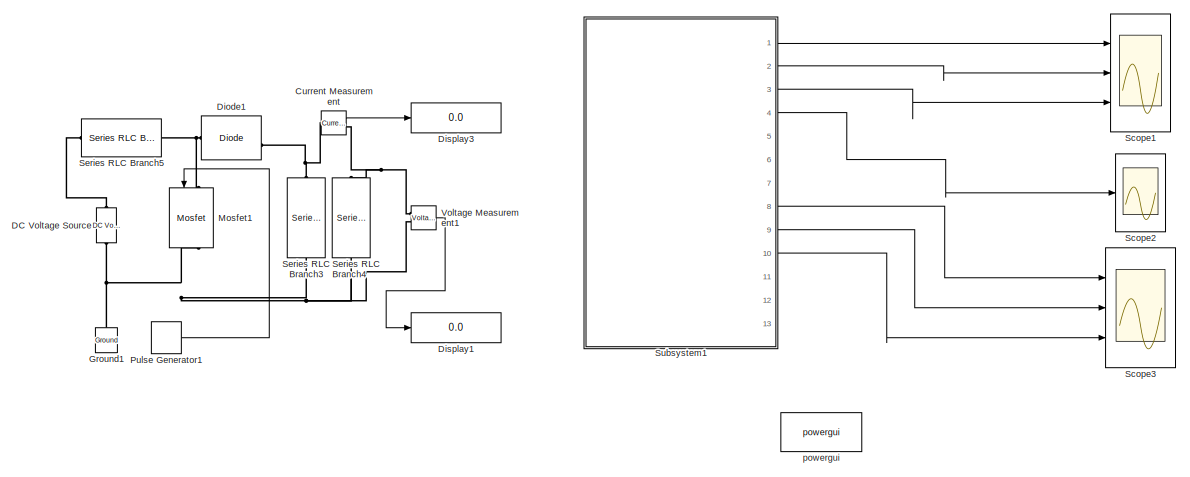
[diagram: root canvas - part 1/2, middle right region]
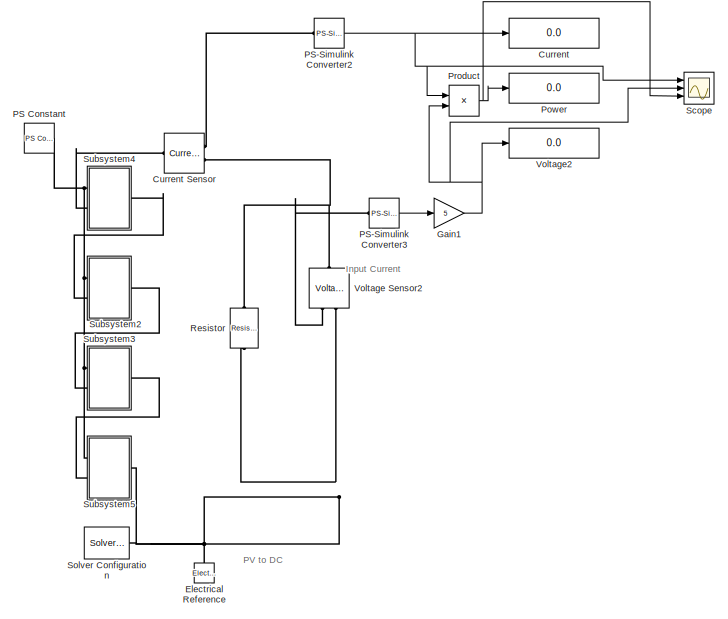
[diagram: root canvas - part 2/2, left side, full height]
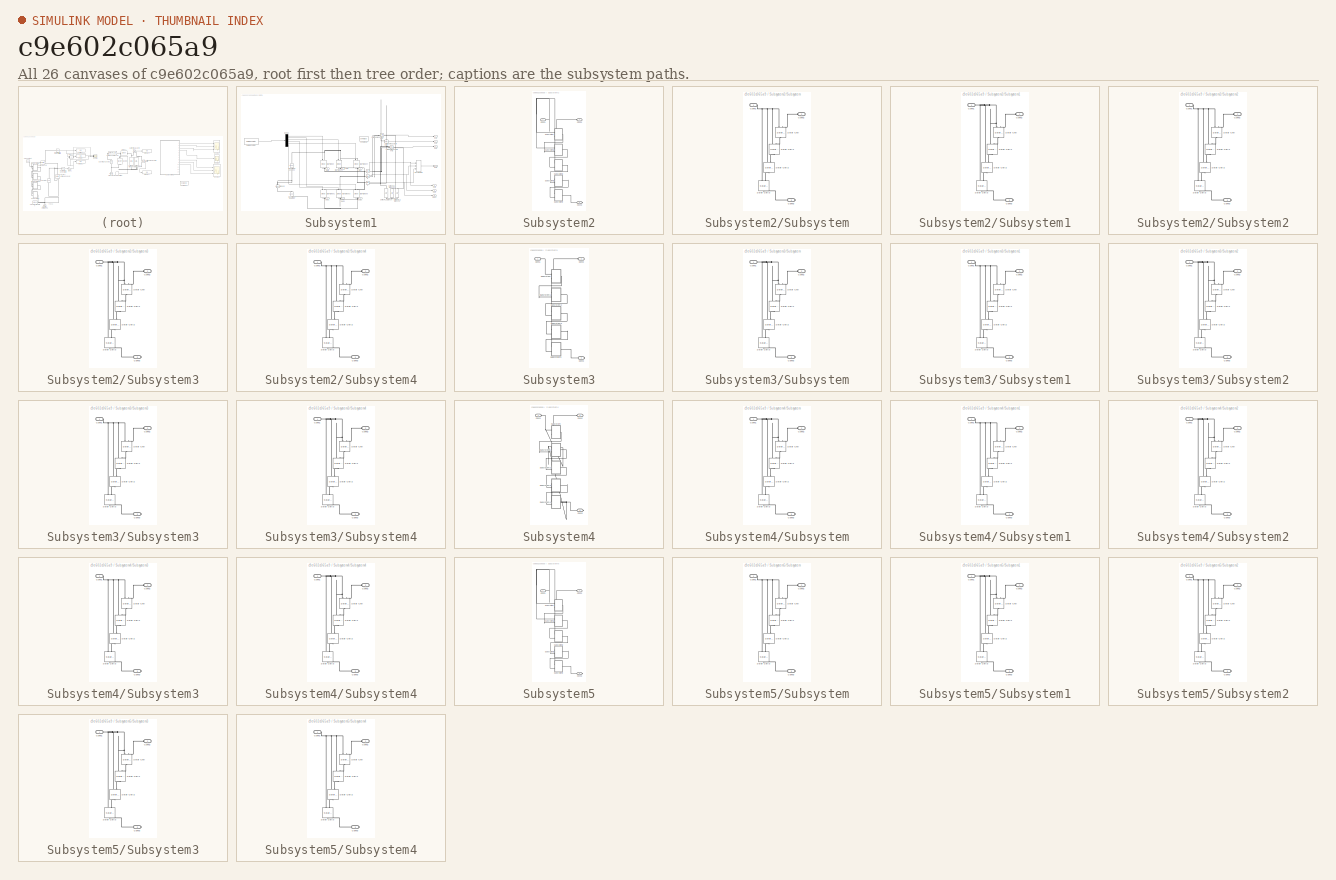
[diagram: thumbnail index - all 26 canvases of the model, root first then tree order]
MODEL slx_c9e602c065a9
KIND model
CONFIG AbsTol = auto
CONFIG EnableMultiTasking = off
CONFIG FixedStep = auto
CONFIG MaxStep = auto
CONFIG MinStep = auto
CONFIG RelTol = 1e-3
CONFIG SampleTimeConstraint = Unconstrained
CONFIG Solver = VariableStepAuto
CONFIG SolverName = VariableStepAuto
CONFIG StartTime = 0.0
CONFIG StopTime = 10.0
BLOCK [Display] Current
  Decimation = 1
  Ports = [1]
BLOCK [Reference] Current Measurement  REF=powerlib/Measurements/Current Measurement
  Ports = [0, 1, 0, 0, 0, 1, 1]
  SourceBlock = powerlib/Measurements/Current Measurement
  SourceProductBaseCode = PS
  SourceType = Current Measurement
  UserDataPersistent = on
BLOCK [Reference] Current Sensor  REF=fl_lib/Electrical/Electrical Sensors/Current Sensor
  Ports = [0, 0, 0, 0, 0, 1, 2]
  SourceBlock = fl_lib/Electrical/Electrical Sensors/Current Sensor
  SourceProductBaseCode = SS
  SourceType = Current Sensor
BLOCK [Reference] DC Voltage Source  REF=powerlib/Electrical
Sources/DC Voltage Source
  NameLocation = right
  Ports = [0, 0, 0, 0, 0, 1, 1]
  SourceBlock = powerlib/Electrical\nSources/DC Voltage Source
  SourceProductBaseCode = PS
  SourceType = DC Voltage Source
BLOCK [Reference] Diode1  REF=powerlib/Power
Electronics/Diode
  Ports = [0, 1, 0, 0, 0, 1, 1]
  SourceBlock = powerlib/Power\nElectronics/Diode
  SourceProductBaseCode = PS
  SourceType = Diode
BLOCK [Display] Display1
  Decimation = 1
  Ports = [1]
BLOCK [Display] Display3
  Decimation = 1
  Ports = [1]
BLOCK [Reference] Electrical Reference  REF=fl_lib/Electrical/Electrical Elements/Electrical Reference
  NameLocation = right
  Ports = [0, 0, 0, 0, 0, 1]
  SourceBlock = fl_lib/Electrical/Electrical Elements/Electrical Reference
  SourceProductBaseCode = SS
  SourceType = Electrical Reference
BLOCK [Gain] Gain1
  Gain = 5
BLOCK [Reference] Ground1  REF=powerlib/Elements/Ground
  NameLocation = right
  Ports = [0, 0, 0, 0, 0, 1]
  SourceBlock = powerlib/Elements/Ground
  SourceProductBaseCode = PS
  SourceType = Ground
BLOCK [Reference] Mosfet1  REF=powerlib/Power
Electronics/Mosfet
  NameLocation = left
  Ports = [1, 1, 0, 0, 0, 1, 1]
  SourceBlock = powerlib/Power\nElectronics/Mosfet
  SourceProductBaseCode = PS
  SourceType = Mosfet
BLOCK [Reference] PS Constant  REF=fl_lib/Physical Signals/Sources/PS Constant
  Ports = [0, 0, 0, 0, 0, 0, 1]
  SourceBlock = fl_lib/Physical Signals/Sources/PS Constant
  SourceProductBaseCode = SS
  SourceType = PS Constant
BLOCK [Reference] PS-Simulink Converter2  REF=nesl_utility/PS-Simulink
Converter
  Ports = [0, 1, 0, 0, 0, 1]
  SourceBlock = nesl_utility/PS-Simulink\nConverter
  SourceProductBaseCode = SS
  SourceType = PS-Simulink\nConverter
BLOCK [Reference] PS-Simulink Converter3  REF=nesl_utility/PS-Simulink
Converter
  Ports = [0, 1, 0, 0, 0, 1]
  SourceBlock = nesl_utility/PS-Simulink\nConverter
  SourceProductBaseCode = SS
  SourceType = PS-Simulink\nConverter
BLOCK [Display] Power
  Decimation = 1
  Ports = [1]
BLOCK [Product] Product
  Ports = [2, 1]
BLOCK [DiscretePulseGenerator] Pulse Generator1
  Period = 1/25000
  Ports = [0, 1]
  PulseType = Time based
  PulseWidth = 75
BLOCK [Reference] Resistor  REF=ee_lib/Passive/Resistor
  NameLocation = left
  Ports = [0, 0, 0, 0, 0, 1, 1]
  SourceBlock = ee_lib/Passive/Resistor
  SourceProductBaseCode = PS
  SourceType = Resistor
BLOCK [Scope] Scope
  Floating = off
  NumInputPorts = 3
  Ports = [3]
  ScopeSpecificationString = Simulink.scopes.TimeScopeBlockCfg('CurrentConfiguration', extmgr.ConfigurationSet(extmgr.Configuration('Core','General UI',true),extmgr.Configuration('Core','Source UI',true),extmgr.Configuration('Sources','WiredSimulink',true,'DataLoggingVariableName','ScopeData1'),extmgr.Configuration('Visuals','Time Domain',true,'SerializedDisplays',{struct('MinYLimReal','-18.68022','MaxYLimReal','241.52188','Y...<+1504ch>
BLOCK [Scope] Scope1
  Floating = off
  NumInputPorts = 3
  Ports = [3]
  ScopeSpecificationString = Simulink.scopes.TimeScopeBlockCfg('CurrentConfiguration', extmgr.ConfigurationSet(extmgr.Configuration('Core','General UI',true),extmgr.Configuration('Core','Source UI',true),extmgr.Configuration('Sources','WiredSimulink',true,'DataLogging',true,'DataLoggingSaveFormat','StructureWithTime','DataLoggingDecimation','1','DataLoggingDecimateData',true,'DataLoggingVariableName','ScopeData1'),extmgr.Conf...<+3395ch>
BLOCK [Scope] Scope2
  Floating = off
  NumInputPorts = 1
  Ports = [1]
  ScopeSpecificationString = Simulink.scopes.TimeScopeBlockCfg('CurrentConfiguration', extmgr.ConfigurationSet(extmgr.Configuration('Core','General UI',true),extmgr.Configuration('Core','Source UI',true),extmgr.Configuration('Sources','WiredSimulink',true,'DataLogging',true,'DataLoggingVariableName','ScopeData2','DataLoggingSaveFormat','StructureWithTime','DataLoggingDecimation','1','DataLoggingDecimateData',true),extmgr.Conf...<+1725ch>
BLOCK [Scope] Scope3
  Floating = off
  NumInputPorts = 3
  Ports = [3]
  ScopeSpecificationString = Simulink.scopes.TimeScopeBlockCfg('CurrentConfiguration', extmgr.ConfigurationSet(extmgr.Configuration('Core','General UI',true),extmgr.Configuration('Core','Source UI',true),extmgr.Configuration('Sources','WiredSimulink',true,'DataLogging',true,'DataLoggingVariableName','ScopeData3','DataLoggingSaveFormat','StructureWithTime','DataLoggingDecimation','1','DataLoggingDecimateData',true),extmgr.Conf...<+3022ch>
BLOCK [Reference] Series RLC Branch3  REF=powerlib/Elements/Series RLC Branch
  NameLocation = left
  Ports = [0, 0, 0, 0, 0, 1, 1]
  SourceBlock = powerlib/Elements/Series RLC Branch
  SourceProductBaseCode = PS
  SourceType = Series RLC Branch
BLOCK [Reference] Series RLC Branch4  REF=powerlib/Elements/Series RLC Branch
  NameLocation = left
  Ports = [0, 0, 0, 0, 0, 1, 1]
  SourceBlock = powerlib/Elements/Series RLC Branch
  SourceProductBaseCode = PS
  SourceType = Series RLC Branch
BLOCK [Reference] Series RLC Branch5  REF=powerlib/Elements/Series RLC Branch
  Ports = [0, 0, 0, 0, 0, 1, 1]
  SourceBlock = powerlib/Elements/Series RLC Branch
  SourceProductBaseCode = PS
  SourceType = Series RLC Branch
BLOCK [Reference] Solver Configuration  REF=nesl_utility/Solver
Configuration
  Ports = [0, 0, 0, 0, 0, 0, 1]
  SourceBlock = nesl_utility/Solver\nConfiguration
  SourceProductBaseCode = SS
  SourceType = Solver\nConfiguration
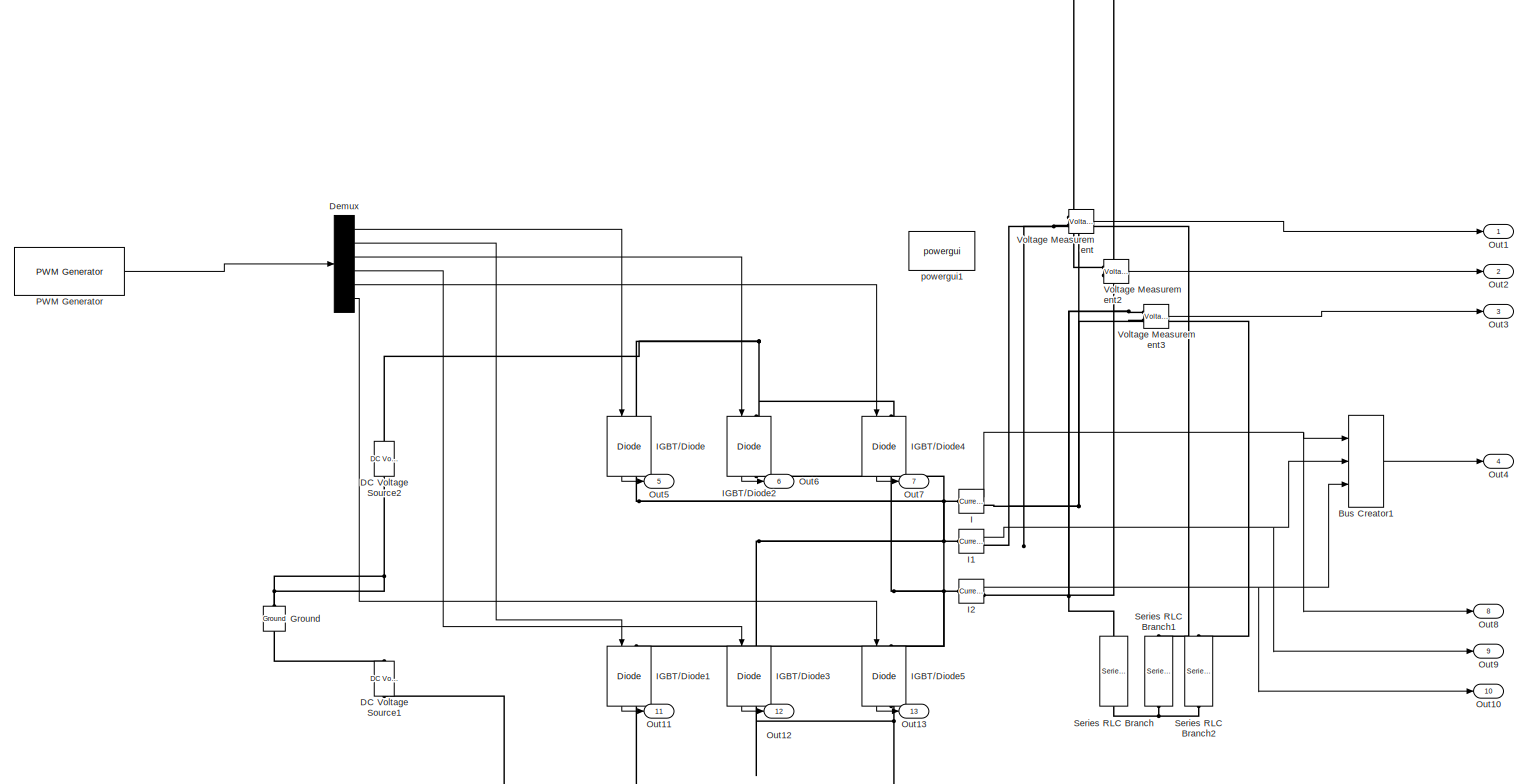
[diagram: Subsystem1 - part 1/1, most of the canvas]
BLOCK [SubSystem] Subsystem1
  Ports = [0, 13]
  RequestExecContextInheritance = off
BLOCK [BusCreator] Subsystem1/Bus Creator1
  DisplayOption = bar
  InheritFromInputs = on
  Inputs = 3
  Ports = [3, 1]
BLOCK [Reference] Subsystem1/DC Voltage Source1  REF=powerlib/Electrical
Sources/DC Voltage Source
  NameLocation = right
  Ports = [0, 0, 0, 0, 0, 1, 1]
  SourceBlock = powerlib/Electrical\nSources/DC Voltage Source
  SourceProductBaseCode = PS
  SourceType = DC Voltage Source
BLOCK [Reference] Subsystem1/DC Voltage Source2  REF=powerlib/Electrical
Sources/DC Voltage Source
  NameLocation = right
  Ports = [0, 0, 0, 0, 0, 1, 1]
  SourceBlock = powerlib/Electrical\nSources/DC Voltage Source
  SourceProductBaseCode = PS
  SourceType = DC Voltage Source
BLOCK [Demux] Subsystem1/Demux
  Outputs = 6
  Ports = [1, 6]
BLOCK [Reference] Subsystem1/Ground  REF=powerlib/Elements/Ground
  NameLocation = right
  Ports = [0, 0, 0, 0, 0, 1]
  SourceBlock = powerlib/Elements/Ground
  SourceProductBaseCode = PS
  SourceType = Ground
BLOCK [Reference] Subsystem1/I  REF=powerlib/Measurements/Current Measurement
  Ports = [0, 1, 0, 0, 0, 1, 1]
  SourceBlock = powerlib/Measurements/Current Measurement
  SourceProductBaseCode = PS
  SourceType = Current Measurement
BLOCK [Reference] Subsystem1/I1  REF=powerlib/Measurements/Current Measurement
  Ports = [0, 1, 0, 0, 0, 1, 1]
  SourceBlock = powerlib/Measurements/Current Measurement
  SourceProductBaseCode = PS
  SourceType = Current Measurement
BLOCK [Reference] Subsystem1/I2  REF=powerlib/Measurements/Current Measurement
  Ports = [0, 1, 0, 0, 0, 1, 1]
  SourceBlock = powerlib/Measurements/Current Measurement
  SourceProductBaseCode = PS
  SourceType = Current Measurement
BLOCK [Reference] Subsystem1/IGBT//Diode  REF=powerlib/Power
Electronics/IGBT//Diode
  NameLocation = left
  Ports = [1, 1, 0, 0, 0, 1, 1]
  SourceBlock = powerlib/Power\nElectronics/IGBT//Diode
  SourceProductBaseCode = PS
  SourceType = IGBT/Diode
BLOCK [Reference] Subsystem1/IGBT//Diode1  REF=powerlib/Power
Electronics/IGBT//Diode
  NameLocation = left
  Ports = [1, 1, 0, 0, 0, 1, 1]
  SourceBlock = powerlib/Power\nElectronics/IGBT//Diode
  SourceProductBaseCode = PS
  SourceType = IGBT/Diode
BLOCK [Reference] Subsystem1/IGBT//Diode2  REF=powerlib/Power
Electronics/IGBT//Diode
  NameLocation = left
  Ports = [1, 1, 0, 0, 0, 1, 1]
  SourceBlock = powerlib/Power\nElectronics/IGBT//Diode
  SourceProductBaseCode = PS
  SourceType = IGBT/Diode
BLOCK [Reference] Subsystem1/IGBT//Diode3  REF=powerlib/Power
Electronics/IGBT//Diode
  NameLocation = left
  Ports = [1, 1, 0, 0, 0, 1, 1]
  SourceBlock = powerlib/Power\nElectronics/IGBT//Diode
  SourceProductBaseCode = PS
  SourceType = IGBT/Diode
BLOCK [Reference] Subsystem1/IGBT//Diode4  REF=powerlib/Power
Electronics/IGBT//Diode
  NameLocation = left
  Ports = [1, 1, 0, 0, 0, 1, 1]
  SourceBlock = powerlib/Power\nElectronics/IGBT//Diode
  SourceProductBaseCode = PS
  SourceType = IGBT/Diode
BLOCK [Reference] Subsystem1/IGBT//Diode5  REF=powerlib/Power
Electronics/IGBT//Diode
  NameLocation = left
  Ports = [1, 1, 0, 0, 0, 1, 1]
  SourceBlock = powerlib/Power\nElectronics/IGBT//Diode
  SourceProductBaseCode = PS
  SourceType = IGBT/Diode
BLOCK [Outport] Subsystem1/Out1
  VectorParamsAs1DForOutWhenUnconnected = off
BLOCK [Outport] Subsystem1/Out10
  Port = 10
  VectorParamsAs1DForOutWhenUnconnected = off
BLOCK [Outport] Subsystem1/Out11
  Port = 11
  VectorParamsAs1DForOutWhenUnconnected = off
BLOCK [Outport] Subsystem1/Out12
  Port = 12
  VectorParamsAs1DForOutWhenUnconnected = off
BLOCK [Outport] Subsystem1/Out13
  Port = 13
  VectorParamsAs1DForOutWhenUnconnected = off
BLOCK [Outport] Subsystem1/Out2
  Port = 2
  VectorParamsAs1DForOutWhenUnconnected = off
BLOCK [Outport] Subsystem1/Out3
  Port = 3
  VectorParamsAs1DForOutWhenUnconnected = off
BLOCK [Outport] Subsystem1/Out4
  Port = 4
  VectorParamsAs1DForOutWhenUnconnected = off
BLOCK [Outport] Subsystem1/Out5
  Port = 5
  VectorParamsAs1DForOutWhenUnconnected = off
BLOCK [Outport] Subsystem1/Out6
  Port = 6
  VectorParamsAs1DForOutWhenUnconnected = off
BLOCK [Outport] Subsystem1/Out7
  Port = 7
  VectorParamsAs1DForOutWhenUnconnected = off
BLOCK [Outport] Subsystem1/Out8
  Port = 8
  VectorParamsAs1DForOutWhenUnconnected = off
BLOCK [Outport] Subsystem1/Out9
  Port = 9
  VectorParamsAs1DForOutWhenUnconnected = off
BLOCK [Reference] Subsystem1/PWM Generator  REF=powerlib_extras/Control 
Blocks/PWM Generator
  Ports = [0, 1]
  SourceBlock = powerlib_extras/Control \nBlocks/PWM Generator
  SourceProductBaseCode = PS
  SourceType = PWM Generator
BLOCK [Reference] Subsystem1/Series RLC Branch  REF=powerlib/Elements/Series RLC Branch
  NameLocation = left
  Ports = [0, 0, 0, 0, 0, 1, 1]
  SourceBlock = powerlib/Elements/Series RLC Branch
  SourceProductBaseCode = PS
  SourceType = Series RLC Branch
BLOCK [Reference] Subsystem1/Series RLC Branch1  REF=powerlib/Elements/Series RLC Branch
  NameLocation = left
  Ports = [0, 0, 0, 0, 0, 1, 1]
  SourceBlock = powerlib/Elements/Series RLC Branch
  SourceProductBaseCode = PS
  SourceType = Series RLC Branch
BLOCK [Reference] Subsystem1/Series RLC Branch2  REF=powerlib/Elements/Series RLC Branch
  NameLocation = left
  Ports = [0, 0, 0, 0, 0, 1, 1]
  SourceBlock = powerlib/Elements/Series RLC Branch
  SourceProductBaseCode = PS
  SourceType = Series RLC Branch
BLOCK [Reference] Subsystem1/Voltage Measurement  REF=powerlib/Measurements/Voltage Measurement
  Ports = [0, 1, 0, 0, 0, 2]
  SourceBlock = powerlib/Measurements/Voltage Measurement
  SourceProductBaseCode = PS
  SourceType = Voltage Measurement
BLOCK [Reference] Subsystem1/Voltage Measurement2  REF=powerlib/Measurements/Voltage Measurement
  Ports = [0, 1, 0, 0, 0, 2]
  SourceBlock = powerlib/Measurements/Voltage Measurement
  SourceProductBaseCode = PS
  SourceType = Voltage Measurement
BLOCK [Reference] Subsystem1/Voltage Measurement3  REF=powerlib/Measurements/Voltage Measurement
  Ports = [0, 1, 0, 0, 0, 2]
  SourceBlock = powerlib/Measurements/Voltage Measurement
  SourceProductBaseCode = PS
  SourceType = Voltage Measurement
BLOCK [Reference] Subsystem1/powergui1  REF=powerlib/powergui
  Ports = []
  Priority = 1
  SourceBlock = powerlib/powergui
  SourceProductBaseCode = PS
  SourceType = PSB option menu block
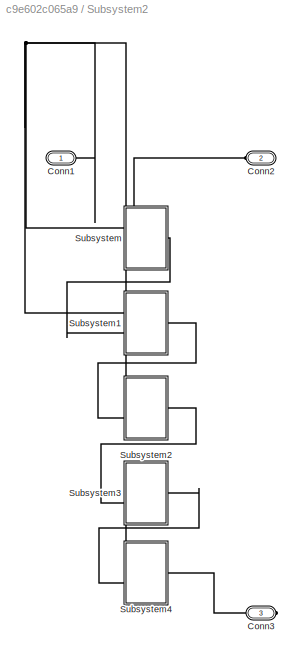
BLOCK [SubSystem] Subsystem2
  Ports = [0, 0, 0, 0, 0, 2, 1]
  RequestExecContextInheritance = off
BLOCK [PMIOPort] Subsystem2/Conn1
  Side = Left
BLOCK [PMIOPort] Subsystem2/Conn2
  Port = 2
  Side = Left
BLOCK [PMIOPort] Subsystem2/Conn3
  Port = 3
  Side = Right
BLOCK [SubSystem] Subsystem2/Subsystem
  Ports = [0, 0, 0, 0, 0, 2, 1]
  RequestExecContextInheritance = off
BLOCK [PMIOPort] Subsystem2/Subsystem/Conn1
  Side = Left
BLOCK [PMIOPort] Subsystem2/Subsystem/Conn2
  Port = 2
  Side = Left
BLOCK [PMIOPort] Subsystem2/Subsystem/Conn3
  Port = 3
  Side = Right
BLOCK [Reference] Subsystem2/Subsystem/Solar Cell  REF=ee_lib/Sources/Solar Cell
  NameLocation = right
  Ports = [0, 0, 0, 0, 0, 2, 1]
  SourceBlock = ee_lib/Sources/Solar Cell
  SourceProductBaseCode = PS
  SourceType = Solar Cell
BLOCK [Reference] Subsystem2/Subsystem/Solar Cell1  REF=ee_lib/Sources/Solar Cell
  NameLocation = right
  Ports = [0, 0, 0, 0, 0, 2, 1]
  SourceBlock = ee_lib/Sources/Solar Cell
  SourceProductBaseCode = PS
  SourceType = Solar Cell
BLOCK [Reference] Subsystem2/Subsystem/Solar Cell2  REF=ee_lib/Sources/Solar Cell
  NameLocation = right
  Ports = [0, 0, 0, 0, 0, 2, 1]
  SourceBlock = ee_lib/Sources/Solar Cell
  SourceProductBaseCode = PS
  SourceType = Solar Cell
BLOCK [Reference] Subsystem2/Subsystem/Solar Cell3  REF=ee_lib/Sources/Solar Cell
  NameLocation = right
  Ports = [0, 0, 0, 0, 0, 2, 1]
  SourceBlock = ee_lib/Sources/Solar Cell
  SourceProductBaseCode = PS
  SourceType = Solar Cell
BLOCK [SubSystem] Subsystem2/Subsystem1
  Ports = [0, 0, 0, 0, 0, 2, 1]
  RequestExecContextInheritance = off
BLOCK [PMIOPort] Subsystem2/Subsystem1/Conn1
  Side = Left
BLOCK [PMIOPort] Subsystem2/Subsystem1/Conn2
  Port = 2
  Side = Left
BLOCK [PMIOPort] Subsystem2/Subsystem1/Conn3
  Port = 3
  Side = Right
BLOCK [Reference] Subsystem2/Subsystem1/Solar Cell  REF=ee_lib/Sources/Solar Cell
  NameLocation = right
  Ports = [0, 0, 0, 0, 0, 2, 1]
  SourceBlock = ee_lib/Sources/Solar Cell
  SourceProductBaseCode = PS
  SourceType = Solar Cell
BLOCK [Reference] Subsystem2/Subsystem1/Solar Cell1  REF=ee_lib/Sources/Solar Cell
  NameLocation = right
  Ports = [0, 0, 0, 0, 0, 2, 1]
  SourceBlock = ee_lib/Sources/Solar Cell
  SourceProductBaseCode = PS
  SourceType = Solar Cell
BLOCK [Reference] Subsystem2/Subsystem1/Solar Cell2  REF=ee_lib/Sources/Solar Cell
  NameLocation = right
  Ports = [0, 0, 0, 0, 0, 2, 1]
  SourceBlock = ee_lib/Sources/Solar Cell
  SourceProductBaseCode = PS
  SourceType = Solar Cell
BLOCK [Reference] Subsystem2/Subsystem1/Solar Cell3  REF=ee_lib/Sources/Solar Cell
  NameLocation = right
  Ports = [0, 0, 0, 0, 0, 2, 1]
  SourceBlock = ee_lib/Sources/Solar Cell
  SourceProductBaseCode = PS
  SourceType = Solar Cell
BLOCK [SubSystem] Subsystem2/Subsystem2
  Ports = [0, 0, 0, 0, 0, 2, 1]
  RequestExecContextInheritance = off
BLOCK [PMIOPort] Subsystem2/Subsystem2/Conn1
  Side = Left
BLOCK [PMIOPort] Subsystem2/Subsystem2/Conn2
  Port = 2
  Side = Left
BLOCK [PMIOPort] Subsystem2/Subsystem2/Conn3
  Port = 3
  Side = Right
BLOCK [Reference] Subsystem2/Subsystem2/Solar Cell  REF=ee_lib/Sources/Solar Cell
  NameLocation = right
  Ports = [0, 0, 0, 0, 0, 2, 1]
  SourceBlock = ee_lib/Sources/Solar Cell
  SourceProductBaseCode = PS
  SourceType = Solar Cell
BLOCK [Reference] Subsystem2/Subsystem2/Solar Cell1  REF=ee_lib/Sources/Solar Cell
  NameLocation = right
  Ports = [0, 0, 0, 0, 0, 2, 1]
  SourceBlock = ee_lib/Sources/Solar Cell
  SourceProductBaseCode = PS
  SourceType = Solar Cell
BLOCK [Reference] Subsystem2/Subsystem2/Solar Cell2  REF=ee_lib/Sources/Solar Cell
  NameLocation = right
  Ports = [0, 0, 0, 0, 0, 2, 1]
  SourceBlock = ee_lib/Sources/Solar Cell
  SourceProductBaseCode = PS
  SourceType = Solar Cell
BLOCK [Reference] Subsystem2/Subsystem2/Solar Cell3  REF=ee_lib/Sources/Solar Cell
  NameLocation = right
  Ports = [0, 0, 0, 0, 0, 2, 1]
  SourceBlock = ee_lib/Sources/Solar Cell
  SourceProductBaseCode = PS
  SourceType = Solar Cell
BLOCK [SubSystem] Subsystem2/Subsystem3
  Ports = [0, 0, 0, 0, 0, 2, 1]
  RequestExecContextInheritance = off
BLOCK [PMIOPort] Subsystem2/Subsystem3/Conn1
  Side = Left
BLOCK [PMIOPort] Subsystem2/Subsystem3/Conn2
  Port = 2
  Side = Left
BLOCK [PMIOPort] Subsystem2/Subsystem3/Conn3
  Port = 3
  Side = Right
BLOCK [Reference] Subsystem2/Subsystem3/Solar Cell  REF=ee_lib/Sources/Solar Cell
  NameLocation = right
  Ports = [0, 0, 0, 0, 0, 2, 1]
  SourceBlock = ee_lib/Sources/Solar Cell
  SourceProductBaseCode = PS
  SourceType = Solar Cell
BLOCK [Reference] Subsystem2/Subsystem3/Solar Cell1  REF=ee_lib/Sources/Solar Cell
  NameLocation = right
  Ports = [0, 0, 0, 0, 0, 2, 1]
  SourceBlock = ee_lib/Sources/Solar Cell
  SourceProductBaseCode = PS
  SourceType = Solar Cell
BLOCK [Reference] Subsystem2/Subsystem3/Solar Cell2  REF=ee_lib/Sources/Solar Cell
  NameLocation = right
  Ports = [0, 0, 0, 0, 0, 2, 1]
  SourceBlock = ee_lib/Sources/Solar Cell
  SourceProductBaseCode = PS
  SourceType = Solar Cell
BLOCK [Reference] Subsystem2/Subsystem3/Solar Cell3  REF=ee_lib/Sources/Solar Cell
  NameLocation = right
  Ports = [0, 0, 0, 0, 0, 2, 1]
  SourceBlock = ee_lib/Sources/Solar Cell
  SourceProductBaseCode = PS
  SourceType = Solar Cell
BLOCK [SubSystem] Subsystem2/Subsystem4
  Ports = [0, 0, 0, 0, 0, 2, 1]
  RequestExecContextInheritance = off
BLOCK [PMIOPort] Subsystem2/Subsystem4/Conn1
  Side = Left
BLOCK [PMIOPort] Subsystem2/Subsystem4/Conn2
  Port = 2
  Side = Left
BLOCK [PMIOPort] Subsystem2/Subsystem4/Conn3
  Port = 3
  Side = Right
BLOCK [Reference] Subsystem2/Subsystem4/Solar Cell  REF=ee_lib/Sources/Solar Cell
  NameLocation = right
  Ports = [0, 0, 0, 0, 0, 2, 1]
  SourceBlock = ee_lib/Sources/Solar Cell
  SourceProductBaseCode = PS
  SourceType = Solar Cell
BLOCK [Reference] Subsystem2/Subsystem4/Solar Cell1  REF=ee_lib/Sources/Solar Cell
  NameLocation = right
  Ports = [0, 0, 0, 0, 0, 2, 1]
  SourceBlock = ee_lib/Sources/Solar Cell
  SourceProductBaseCode = PS
  SourceType = Solar Cell
BLOCK [Reference] Subsystem2/Subsystem4/Solar Cell2  REF=ee_lib/Sources/Solar Cell
  NameLocation = right
  Ports = [0, 0, 0, 0, 0, 2, 1]
  SourceBlock = ee_lib/Sources/Solar Cell
  SourceProductBaseCode = PS
  SourceType = Solar Cell
BLOCK [Reference] Subsystem2/Subsystem4/Solar Cell3  REF=ee_lib/Sources/Solar Cell
  NameLocation = right
  Ports = [0, 0, 0, 0, 0, 2, 1]
  SourceBlock = ee_lib/Sources/Solar Cell
  SourceProductBaseCode = PS
  SourceType = Solar Cell
BLOCK [SubSystem] Subsystem3
  Ports = [0, 0, 0, 0, 0, 2, 1]
  RequestExecContextInheritance = off
BLOCK [PMIOPort] Subsystem3/Conn1
  Side = Left
BLOCK [PMIOPort] Subsystem3/Conn2
  Port = 2
  Side = Left
BLOCK [PMIOPort] Subsystem3/Conn3
  Port = 3
  Side = Right
BLOCK [SubSystem] Subsystem3/Subsystem
  Ports = [0, 0, 0, 0, 0, 2, 1]
  RequestExecContextInheritance = off
BLOCK [PMIOPort] Subsystem3/Subsystem/Conn1
  Side = Left
BLOCK [PMIOPort] Subsystem3/Subsystem/Conn2
  Port = 2
  Side = Left
BLOCK [PMIOPort] Subsystem3/Subsystem/Conn3
  Port = 3
  Side = Right
BLOCK [Reference] Subsystem3/Subsystem/Solar Cell  REF=ee_lib/Sources/Solar Cell
  NameLocation = right
  Ports = [0, 0, 0, 0, 0, 2, 1]
  SourceBlock = ee_lib/Sources/Solar Cell
  SourceProductBaseCode = PS
  SourceType = Solar Cell
BLOCK [Reference] Subsystem3/Subsystem/Solar Cell1  REF=ee_lib/Sources/Solar Cell
  NameLocation = right
  Ports = [0, 0, 0, 0, 0, 2, 1]
  SourceBlock = ee_lib/Sources/Solar Cell
  SourceProductBaseCode = PS
  SourceType = Solar Cell
BLOCK [Reference] Subsystem3/Subsystem/Solar Cell2  REF=ee_lib/Sources/Solar Cell
  NameLocation = right
  Ports = [0, 0, 0, 0, 0, 2, 1]
  SourceBlock = ee_lib/Sources/Solar Cell
  SourceProductBaseCode = PS
  SourceType = Solar Cell
BLOCK [Reference] Subsystem3/Subsystem/Solar Cell3  REF=ee_lib/Sources/Solar Cell
  NameLocation = right
  Ports = [0, 0, 0, 0, 0, 2, 1]
  SourceBlock = ee_lib/Sources/Solar Cell
  SourceProductBaseCode = PS
  SourceType = Solar Cell
BLOCK [SubSystem] Subsystem3/Subsystem1
  Ports = [0, 0, 0, 0, 0, 2, 1]
  RequestExecContextInheritance = off
BLOCK [PMIOPort] Subsystem3/Subsystem1/Conn1
  Side = Left
BLOCK [PMIOPort] Subsystem3/Subsystem1/Conn2
  Port = 2
  Side = Left
BLOCK [PMIOPort] Subsystem3/Subsystem1/Conn3
  Port = 3
  Side = Right
BLOCK [Reference] Subsystem3/Subsystem1/Solar Cell  REF=ee_lib/Sources/Solar Cell
  NameLocation = right
  Ports = [0, 0, 0, 0, 0, 2, 1]
  SourceBlock = ee_lib/Sources/Solar Cell
  SourceProductBaseCode = PS
  SourceType = Solar Cell
BLOCK [Reference] Subsystem3/Subsystem1/Solar Cell1  REF=ee_lib/Sources/Solar Cell
  NameLocation = right
  Ports = [0, 0, 0, 0, 0, 2, 1]
  SourceBlock = ee_lib/Sources/Solar Cell
  SourceProductBaseCode = PS
  SourceType = Solar Cell
BLOCK [Reference] Subsystem3/Subsystem1/Solar Cell2  REF=ee_lib/Sources/Solar Cell
  NameLocation = right
  Ports = [0, 0, 0, 0, 0, 2, 1]
  SourceBlock = ee_lib/Sources/Solar Cell
  SourceProductBaseCode = PS
  SourceType = Solar Cell
BLOCK [Reference] Subsystem3/Subsystem1/Solar Cell3  REF=ee_lib/Sources/Solar Cell
  NameLocation = right
  Ports = [0, 0, 0, 0, 0, 2, 1]
  SourceBlock = ee_lib/Sources/Solar Cell
  SourceProductBaseCode = PS
  SourceType = Solar Cell
BLOCK [SubSystem] Subsystem3/Subsystem2
  Ports = [0, 0, 0, 0, 0, 2, 1]
  RequestExecContextInheritance = off
BLOCK [PMIOPort] Subsystem3/Subsystem2/Conn1
  Side = Left
BLOCK [PMIOPort] Subsystem3/Subsystem2/Conn2
  Port = 2
  Side = Left
BLOCK [PMIOPort] Subsystem3/Subsystem2/Conn3
  Port = 3
  Side = Right
BLOCK [Reference] Subsystem3/Subsystem2/Solar Cell  REF=ee_lib/Sources/Solar Cell
  NameLocation = right
  Ports = [0, 0, 0, 0, 0, 2, 1]
  SourceBlock = ee_lib/Sources/Solar Cell
  SourceProductBaseCode = PS
  SourceType = Solar Cell
BLOCK [Reference] Subsystem3/Subsystem2/Solar Cell1  REF=ee_lib/Sources/Solar Cell
  NameLocation = right
  Ports = [0, 0, 0, 0, 0, 2, 1]
  SourceBlock = ee_lib/Sources/Solar Cell
  SourceProductBaseCode = PS
  SourceType = Solar Cell
BLOCK [Reference] Subsystem3/Subsystem2/Solar Cell2  REF=ee_lib/Sources/Solar Cell
  NameLocation = right
  Ports = [0, 0, 0, 0, 0, 2, 1]
  SourceBlock = ee_lib/Sources/Solar Cell
  SourceProductBaseCode = PS
  SourceType = Solar Cell
BLOCK [Reference] Subsystem3/Subsystem2/Solar Cell3  REF=ee_lib/Sources/Solar Cell
  NameLocation = right
  Ports = [0, 0, 0, 0, 0, 2, 1]
  SourceBlock = ee_lib/Sources/Solar Cell
  SourceProductBaseCode = PS
  SourceType = Solar Cell
BLOCK [SubSystem] Subsystem3/Subsystem3
  Ports = [0, 0, 0, 0, 0, 2, 1]
  RequestExecContextInheritance = off
BLOCK [PMIOPort] Subsystem3/Subsystem3/Conn1
  Side = Left
BLOCK [PMIOPort] Subsystem3/Subsystem3/Conn2
  Port = 2
  Side = Left
BLOCK [PMIOPort] Subsystem3/Subsystem3/Conn3
  Port = 3
  Side = Right
BLOCK [Reference] Subsystem3/Subsystem3/Solar Cell  REF=ee_lib/Sources/Solar Cell
  NameLocation = right
  Ports = [0, 0, 0, 0, 0, 2, 1]
  SourceBlock = ee_lib/Sources/Solar Cell
  SourceProductBaseCode = PS
  SourceType = Solar Cell
BLOCK [Reference] Subsystem3/Subsystem3/Solar Cell1  REF=ee_lib/Sources/Solar Cell
  NameLocation = right
  Ports = [0, 0, 0, 0, 0, 2, 1]
  SourceBlock = ee_lib/Sources/Solar Cell
  SourceProductBaseCode = PS
  SourceType = Solar Cell
BLOCK [Reference] Subsystem3/Subsystem3/Solar Cell2  REF=ee_lib/Sources/Solar Cell
  NameLocation = right
  Ports = [0, 0, 0, 0, 0, 2, 1]
  SourceBlock = ee_lib/Sources/Solar Cell
  SourceProductBaseCode = PS
  SourceType = Solar Cell
BLOCK [Reference] Subsystem3/Subsystem3/Solar Cell3  REF=ee_lib/Sources/Solar Cell
  NameLocation = right
  Ports = [0, 0, 0, 0, 0, 2, 1]
  SourceBlock = ee_lib/Sources/Solar Cell
  SourceProductBaseCode = PS
  SourceType = Solar Cell
BLOCK [SubSystem] Subsystem3/Subsystem4
  Ports = [0, 0, 0, 0, 0, 2, 1]
  RequestExecContextInheritance = off
BLOCK [PMIOPort] Subsystem3/Subsystem4/Conn1
  Side = Left
BLOCK [PMIOPort] Subsystem3/Subsystem4/Conn2
  Port = 2
  Side = Left
BLOCK [PMIOPort] Subsystem3/Subsystem4/Conn3
  Port = 3
  Side = Right
BLOCK [Reference] Subsystem3/Subsystem4/Solar Cell  REF=ee_lib/Sources/Solar Cell
  NameLocation = right
  Ports = [0, 0, 0, 0, 0, 2, 1]
  SourceBlock = ee_lib/Sources/Solar Cell
  SourceProductBaseCode = PS
  SourceType = Solar Cell
BLOCK [Reference] Subsystem3/Subsystem4/Solar Cell1  REF=ee_lib/Sources/Solar Cell
  NameLocation = right
  Ports = [0, 0, 0, 0, 0, 2, 1]
  SourceBlock = ee_lib/Sources/Solar Cell
  SourceProductBaseCode = PS
  SourceType = Solar Cell
BLOCK [Reference] Subsystem3/Subsystem4/Solar Cell2  REF=ee_lib/Sources/Solar Cell
  NameLocation = right
  Ports = [0, 0, 0, 0, 0, 2, 1]
  SourceBlock = ee_lib/Sources/Solar Cell
  SourceProductBaseCode = PS
  SourceType = Solar Cell
BLOCK [Reference] Subsystem3/Subsystem4/Solar Cell3  REF=ee_lib/Sources/Solar Cell
  NameLocation = right
  Ports = [0, 0, 0, 0, 0, 2, 1]
  SourceBlock = ee_lib/Sources/Solar Cell
  SourceProductBaseCode = PS
  SourceType = Solar Cell
BLOCK [SubSystem] Subsystem4
  Ports = [0, 0, 0, 0, 0, 2, 1]
  RequestExecContextInheritance = off
BLOCK [PMIOPort] Subsystem4/Conn1
  Side = Left
BLOCK [PMIOPort] Subsystem4/Conn2
  Port = 2
  Side = Left
BLOCK [PMIOPort] Subsystem4/Conn3
  Port = 3
  Side = Right
BLOCK [SubSystem] Subsystem4/Subsystem
  Ports = [0, 0, 0, 0, 0, 2, 1]
  RequestExecContextInheritance = off
BLOCK [PMIOPort] Subsystem4/Subsystem/Conn1
  Side = Left
BLOCK [PMIOPort] Subsystem4/Subsystem/Conn2
  Port = 2
  Side = Left
BLOCK [PMIOPort] Subsystem4/Subsystem/Conn3
  Port = 3
  Side = Right
BLOCK [Reference] Subsystem4/Subsystem/Solar Cell  REF=ee_lib/Sources/Solar Cell
  NameLocation = right
  Ports = [0, 0, 0, 0, 0, 2, 1]
  SourceBlock = ee_lib/Sources/Solar Cell
  SourceProductBaseCode = PS
  SourceType = Solar Cell
BLOCK [Reference] Subsystem4/Subsystem/Solar Cell1  REF=ee_lib/Sources/Solar Cell
  NameLocation = right
  Ports = [0, 0, 0, 0, 0, 2, 1]
  SourceBlock = ee_lib/Sources/Solar Cell
  SourceProductBaseCode = PS
  SourceType = Solar Cell
BLOCK [Reference] Subsystem4/Subsystem/Solar Cell2  REF=ee_lib/Sources/Solar Cell
  NameLocation = right
  Ports = [0, 0, 0, 0, 0, 2, 1]
  SourceBlock = ee_lib/Sources/Solar Cell
  SourceProductBaseCode = PS
  SourceType = Solar Cell
BLOCK [Reference] Subsystem4/Subsystem/Solar Cell3  REF=ee_lib/Sources/Solar Cell
  NameLocation = right
  Ports = [0, 0, 0, 0, 0, 2, 1]
  SourceBlock = ee_lib/Sources/Solar Cell
  SourceProductBaseCode = PS
  SourceType = Solar Cell
BLOCK [SubSystem] Subsystem4/Subsystem1
  Ports = [0, 0, 0, 0, 0, 2, 1]
  RequestExecContextInheritance = off
BLOCK [PMIOPort] Subsystem4/Subsystem1/Conn1
  Side = Left
BLOCK [PMIOPort] Subsystem4/Subsystem1/Conn2
  Port = 2
  Side = Left
BLOCK [PMIOPort] Subsystem4/Subsystem1/Conn3
  Port = 3
  Side = Right
BLOCK [Reference] Subsystem4/Subsystem1/Solar Cell  REF=ee_lib/Sources/Solar Cell
  NameLocation = right
  Ports = [0, 0, 0, 0, 0, 2, 1]
  SourceBlock = ee_lib/Sources/Solar Cell
  SourceProductBaseCode = PS
  SourceType = Solar Cell
BLOCK [Reference] Subsystem4/Subsystem1/Solar Cell1  REF=ee_lib/Sources/Solar Cell
  NameLocation = right
  Ports = [0, 0, 0, 0, 0, 2, 1]
  SourceBlock = ee_lib/Sources/Solar Cell
  SourceProductBaseCode = PS
  SourceType = Solar Cell
BLOCK [Reference] Subsystem4/Subsystem1/Solar Cell2  REF=ee_lib/Sources/Solar Cell
  NameLocation = right
  Ports = [0, 0, 0, 0, 0, 2, 1]
  SourceBlock = ee_lib/Sources/Solar Cell
  SourceProductBaseCode = PS
  SourceType = Solar Cell
BLOCK [Reference] Subsystem4/Subsystem1/Solar Cell3  REF=ee_lib/Sources/Solar Cell
  NameLocation = right
  Ports = [0, 0, 0, 0, 0, 2, 1]
  SourceBlock = ee_lib/Sources/Solar Cell
  SourceProductBaseCode = PS
  SourceType = Solar Cell
BLOCK [SubSystem] Subsystem4/Subsystem2
  Ports = [0, 0, 0, 0, 0, 2, 1]
  RequestExecContextInheritance = off
BLOCK [PMIOPort] Subsystem4/Subsystem2/Conn1
  Side = Left
BLOCK [PMIOPort] Subsystem4/Subsystem2/Conn2
  Port = 2
  Side = Left
BLOCK [PMIOPort] Subsystem4/Subsystem2/Conn3
  Port = 3
  Side = Right
BLOCK [Reference] Subsystem4/Subsystem2/Solar Cell  REF=ee_lib/Sources/Solar Cell
  NameLocation = right
  Ports = [0, 0, 0, 0, 0, 2, 1]
  SourceBlock = ee_lib/Sources/Solar Cell
  SourceProductBaseCode = PS
  SourceType = Solar Cell
BLOCK [Reference] Subsystem4/Subsystem2/Solar Cell1  REF=ee_lib/Sources/Solar Cell
  NameLocation = right
  Ports = [0, 0, 0, 0, 0, 2, 1]
  SourceBlock = ee_lib/Sources/Solar Cell
  SourceProductBaseCode = PS
  SourceType = Solar Cell
BLOCK [Reference] Subsystem4/Subsystem2/Solar Cell2  REF=ee_lib/Sources/Solar Cell
  NameLocation = right
  Ports = [0, 0, 0, 0, 0, 2, 1]
  SourceBlock = ee_lib/Sources/Solar Cell
  SourceProductBaseCode = PS
  SourceType = Solar Cell
BLOCK [Reference] Subsystem4/Subsystem2/Solar Cell3  REF=ee_lib/Sources/Solar Cell
  NameLocation = right
  Ports = [0, 0, 0, 0, 0, 2, 1]
  SourceBlock = ee_lib/Sources/Solar Cell
  SourceProductBaseCode = PS
  SourceType = Solar Cell
BLOCK [SubSystem] Subsystem4/Subsystem3
  Ports = [0, 0, 0, 0, 0, 2, 1]
  RequestExecContextInheritance = off
BLOCK [PMIOPort] Subsystem4/Subsystem3/Conn1
  Side = Left
BLOCK [PMIOPort] Subsystem4/Subsystem3/Conn2
  Port = 2
  Side = Left
BLOCK [PMIOPort] Subsystem4/Subsystem3/Conn3
  Port = 3
  Side = Right
BLOCK [Reference] Subsystem4/Subsystem3/Solar Cell  REF=ee_lib/Sources/Solar Cell
  NameLocation = right
  Ports = [0, 0, 0, 0, 0, 2, 1]
  SourceBlock = ee_lib/Sources/Solar Cell
  SourceProductBaseCode = PS
  SourceType = Solar Cell
BLOCK [Reference] Subsystem4/Subsystem3/Solar Cell1  REF=ee_lib/Sources/Solar Cell
  NameLocation = right
  Ports = [0, 0, 0, 0, 0, 2, 1]
  SourceBlock = ee_lib/Sources/Solar Cell
  SourceProductBaseCode = PS
  SourceType = Solar Cell
BLOCK [Reference] Subsystem4/Subsystem3/Solar Cell2  REF=ee_lib/Sources/Solar Cell
  NameLocation = right
  Ports = [0, 0, 0, 0, 0, 2, 1]
  SourceBlock = ee_lib/Sources/Solar Cell
  SourceProductBaseCode = PS
  SourceType = Solar Cell
BLOCK [Reference] Subsystem4/Subsystem3/Solar Cell3  REF=ee_lib/Sources/Solar Cell
  NameLocation = right
  Ports = [0, 0, 0, 0, 0, 2, 1]
  SourceBlock = ee_lib/Sources/Solar Cell
  SourceProductBaseCode = PS
  SourceType = Solar Cell
BLOCK [SubSystem] Subsystem4/Subsystem4
  Ports = [0, 0, 0, 0, 0, 2, 1]
  RequestExecContextInheritance = off
BLOCK [PMIOPort] Subsystem4/Subsystem4/Conn1
  Side = Left
BLOCK [PMIOPort] Subsystem4/Subsystem4/Conn2
  Port = 2
  Side = Left
BLOCK [PMIOPort] Subsystem4/Subsystem4/Conn3
  Port = 3
  Side = Right
BLOCK [Reference] Subsystem4/Subsystem4/Solar Cell  REF=ee_lib/Sources/Solar Cell
  NameLocation = right
  Ports = [0, 0, 0, 0, 0, 2, 1]
  SourceBlock = ee_lib/Sources/Solar Cell
  SourceProductBaseCode = PS
  SourceType = Solar Cell
BLOCK [Reference] Subsystem4/Subsystem4/Solar Cell1  REF=ee_lib/Sources/Solar Cell
  NameLocation = right
  Ports = [0, 0, 0, 0, 0, 2, 1]
  SourceBlock = ee_lib/Sources/Solar Cell
  SourceProductBaseCode = PS
  SourceType = Solar Cell
BLOCK [Reference] Subsystem4/Subsystem4/Solar Cell2  REF=ee_lib/Sources/Solar Cell
  NameLocation = right
  Ports = [0, 0, 0, 0, 0, 2, 1]
  SourceBlock = ee_lib/Sources/Solar Cell
  SourceProductBaseCode = PS
  SourceType = Solar Cell
BLOCK [Reference] Subsystem4/Subsystem4/Solar Cell3  REF=ee_lib/Sources/Solar Cell
  NameLocation = right
  Ports = [0, 0, 0, 0, 0, 2, 1]
  SourceBlock = ee_lib/Sources/Solar Cell
  SourceProductBaseCode = PS
  SourceType = Solar Cell
BLOCK [SubSystem] Subsystem5
  Ports = [0, 0, 0, 0, 0, 2, 1]
  RequestExecContextInheritance = off
BLOCK [PMIOPort] Subsystem5/Conn1
  Side = Left
BLOCK [PMIOPort] Subsystem5/Conn2
  Port = 2
  Side = Left
BLOCK [PMIOPort] Subsystem5/Conn3
  Port = 3
  Side = Right
BLOCK [SubSystem] Subsystem5/Subsystem
  Ports = [0, 0, 0, 0, 0, 2, 1]
  RequestExecContextInheritance = off
BLOCK [PMIOPort] Subsystem5/Subsystem/Conn1
  Side = Left
BLOCK [PMIOPort] Subsystem5/Subsystem/Conn2
  Port = 2
  Side = Left
BLOCK [PMIOPort] Subsystem5/Subsystem/Conn3
  Port = 3
  Side = Right
BLOCK [Reference] Subsystem5/Subsystem/Solar Cell  REF=ee_lib/Sources/Solar Cell
  NameLocation = right
  Ports = [0, 0, 0, 0, 0, 2, 1]
  SourceBlock = ee_lib/Sources/Solar Cell
  SourceProductBaseCode = PS
  SourceType = Solar Cell
BLOCK [Reference] Subsystem5/Subsystem/Solar Cell1  REF=ee_lib/Sources/Solar Cell
  NameLocation = right
  Ports = [0, 0, 0, 0, 0, 2, 1]
  SourceBlock = ee_lib/Sources/Solar Cell
  SourceProductBaseCode = PS
  SourceType = Solar Cell
BLOCK [Reference] Subsystem5/Subsystem/Solar Cell2  REF=ee_lib/Sources/Solar Cell
  NameLocation = right
  Ports = [0, 0, 0, 0, 0, 2, 1]
  SourceBlock = ee_lib/Sources/Solar Cell
  SourceProductBaseCode = PS
  SourceType = Solar Cell
BLOCK [Reference] Subsystem5/Subsystem/Solar Cell3  REF=ee_lib/Sources/Solar Cell
  NameLocation = right
  Ports = [0, 0, 0, 0, 0, 2, 1]
  SourceBlock = ee_lib/Sources/Solar Cell
  SourceProductBaseCode = PS
  SourceType = Solar Cell
BLOCK [SubSystem] Subsystem5/Subsystem1
  Ports = [0, 0, 0, 0, 0, 2, 1]
  RequestExecContextInheritance = off
BLOCK [PMIOPort] Subsystem5/Subsystem1/Conn1
  Side = Left
BLOCK [PMIOPort] Subsystem5/Subsystem1/Conn2
  Port = 2
  Side = Left
BLOCK [PMIOPort] Subsystem5/Subsystem1/Conn3
  Port = 3
  Side = Right
BLOCK [Reference] Subsystem5/Subsystem1/Solar Cell  REF=ee_lib/Sources/Solar Cell
  NameLocation = right
  Ports = [0, 0, 0, 0, 0, 2, 1]
  SourceBlock = ee_lib/Sources/Solar Cell
  SourceProductBaseCode = PS
  SourceType = Solar Cell
BLOCK [Reference] Subsystem5/Subsystem1/Solar Cell1  REF=ee_lib/Sources/Solar Cell
  NameLocation = right
  Ports = [0, 0, 0, 0, 0, 2, 1]
  SourceBlock = ee_lib/Sources/Solar Cell
  SourceProductBaseCode = PS
  SourceType = Solar Cell
BLOCK [Reference] Subsystem5/Subsystem1/Solar Cell2  REF=ee_lib/Sources/Solar Cell
  NameLocation = right
  Ports = [0, 0, 0, 0, 0, 2, 1]
  SourceBlock = ee_lib/Sources/Solar Cell
  SourceProductBaseCode = PS
  SourceType = Solar Cell
BLOCK [Reference] Subsystem5/Subsystem1/Solar Cell3  REF=ee_lib/Sources/Solar Cell
  NameLocation = right
  Ports = [0, 0, 0, 0, 0, 2, 1]
  SourceBlock = ee_lib/Sources/Solar Cell
  SourceProductBaseCode = PS
  SourceType = Solar Cell
BLOCK [SubSystem] Subsystem5/Subsystem2
  Ports = [0, 0, 0, 0, 0, 2, 1]
  RequestExecContextInheritance = off
BLOCK [PMIOPort] Subsystem5/Subsystem2/Conn1
  Side = Left
BLOCK [PMIOPort] Subsystem5/Subsystem2/Conn2
  Port = 2
  Side = Left
BLOCK [PMIOPort] Subsystem5/Subsystem2/Conn3
  Port = 3
  Side = Right
BLOCK [Reference] Subsystem5/Subsystem2/Solar Cell  REF=ee_lib/Sources/Solar Cell
  NameLocation = right
  Ports = [0, 0, 0, 0, 0, 2, 1]
  SourceBlock = ee_lib/Sources/Solar Cell
  SourceProductBaseCode = PS
  SourceType = Solar Cell
BLOCK [Reference] Subsystem5/Subsystem2/Solar Cell1  REF=ee_lib/Sources/Solar Cell
  NameLocation = right
  Ports = [0, 0, 0, 0, 0, 2, 1]
  SourceBlock = ee_lib/Sources/Solar Cell
  SourceProductBaseCode = PS
  SourceType = Solar Cell
BLOCK [Reference] Subsystem5/Subsystem2/Solar Cell2  REF=ee_lib/Sources/Solar Cell
  NameLocation = right
  Ports = [0, 0, 0, 0, 0, 2, 1]
  SourceBlock = ee_lib/Sources/Solar Cell
  SourceProductBaseCode = PS
  SourceType = Solar Cell
BLOCK [Reference] Subsystem5/Subsystem2/Solar Cell3  REF=ee_lib/Sources/Solar Cell
  NameLocation = right
  Ports = [0, 0, 0, 0, 0, 2, 1]
  SourceBlock = ee_lib/Sources/Solar Cell
  SourceProductBaseCode = PS
  SourceType = Solar Cell
BLOCK [SubSystem] Subsystem5/Subsystem3
  Ports = [0, 0, 0, 0, 0, 2, 1]
  RequestExecContextInheritance = off
BLOCK [PMIOPort] Subsystem5/Subsystem3/Conn1
  Side = Left
BLOCK [PMIOPort] Subsystem5/Subsystem3/Conn2
  Port = 2
  Side = Left
BLOCK [PMIOPort] Subsystem5/Subsystem3/Conn3
  Port = 3
  Side = Right
BLOCK [Reference] Subsystem5/Subsystem3/Solar Cell  REF=ee_lib/Sources/Solar Cell
  NameLocation = right
  Ports = [0, 0, 0, 0, 0, 2, 1]
  SourceBlock = ee_lib/Sources/Solar Cell
  SourceProductBaseCode = PS
  SourceType = Solar Cell
BLOCK [Reference] Subsystem5/Subsystem3/Solar Cell1  REF=ee_lib/Sources/Solar Cell
  NameLocation = right
  Ports = [0, 0, 0, 0, 0, 2, 1]
  SourceBlock = ee_lib/Sources/Solar Cell
  SourceProductBaseCode = PS
  SourceType = Solar Cell
BLOCK [Reference] Subsystem5/Subsystem3/Solar Cell2  REF=ee_lib/Sources/Solar Cell
  NameLocation = right
  Ports = [0, 0, 0, 0, 0, 2, 1]
  SourceBlock = ee_lib/Sources/Solar Cell
  SourceProductBaseCode = PS
  SourceType = Solar Cell
BLOCK [Reference] Subsystem5/Subsystem3/Solar Cell3  REF=ee_lib/Sources/Solar Cell
  NameLocation = right
  Ports = [0, 0, 0, 0, 0, 2, 1]
  SourceBlock = ee_lib/Sources/Solar Cell
  SourceProductBaseCode = PS
  SourceType = Solar Cell
BLOCK [SubSystem] Subsystem5/Subsystem4
  Ports = [0, 0, 0, 0, 0, 2, 1]
  RequestExecContextInheritance = off
BLOCK [PMIOPort] Subsystem5/Subsystem4/Conn1
  Side = Left
BLOCK [PMIOPort] Subsystem5/Subsystem4/Conn2
  Port = 2
  Side = Left
BLOCK [PMIOPort] Subsystem5/Subsystem4/Conn3
  Port = 3
  Side = Right
BLOCK [Reference] Subsystem5/Subsystem4/Solar Cell  REF=ee_lib/Sources/Solar Cell
  NameLocation = right
  Ports = [0, 0, 0, 0, 0, 2, 1]
  SourceBlock = ee_lib/Sources/Solar Cell
  SourceProductBaseCode = PS
  SourceType = Solar Cell
BLOCK [Reference] Subsystem5/Subsystem4/Solar Cell1  REF=ee_lib/Sources/Solar Cell
  NameLocation = right
  Ports = [0, 0, 0, 0, 0, 2, 1]
  SourceBlock = ee_lib/Sources/Solar Cell
  SourceProductBaseCode = PS
  SourceType = Solar Cell
BLOCK [Reference] Subsystem5/Subsystem4/Solar Cell2  REF=ee_lib/Sources/Solar Cell
  NameLocation = right
  Ports = [0, 0, 0, 0, 0, 2, 1]
  SourceBlock = ee_lib/Sources/Solar Cell
  SourceProductBaseCode = PS
  SourceType = Solar Cell
BLOCK [Reference] Subsystem5/Subsystem4/Solar Cell3  REF=ee_lib/Sources/Solar Cell
  NameLocation = right
  Ports = [0, 0, 0, 0, 0, 2, 1]
  SourceBlock = ee_lib/Sources/Solar Cell
  SourceProductBaseCode = PS
  SourceType = Solar Cell
BLOCK [Reference] Voltage Measurement1  REF=powerlib/Measurements/Voltage Measurement
  Ports = [0, 1, 0, 0, 0, 2]
  SourceBlock = powerlib/Measurements/Voltage Measurement
  SourceProductBaseCode = PS
  SourceType = Voltage Measurement
  UserDataPersistent = on
BLOCK [Reference] Voltage Sensor2  REF=fl_lib/Electrical/Electrical Sensors/Voltage Sensor
  NameLocation = right
  Ports = [0, 0, 0, 0, 0, 1, 2]
  SourceBlock = fl_lib/Electrical/Electrical Sensors/Voltage Sensor
  SourceProductBaseCode = SS
  SourceType = Voltage Sensor
BLOCK [Display] Voltage2
  Decimation = 1
  Ports = [1]
BLOCK [Reference] powergui  REF=powerlib/powergui
  Ports = []
  Priority = 1
  SourceBlock = powerlib/powergui
  SourceProductBaseCode = PS
  SourceType = PSB option menu block
ANNOTATION (root): PV to DC
ANNOTATION (root): Input Current
LINE Current Measurement:1 -> Display3:1
NET Gain1:1 -> Product:2, Scope:2, Voltage2:1
NET PS-Simulink Converter2:1 -> Current:1, Product:1, Scope:1
LINE PS-Simulink Converter3:1 -> Gain1:1
NET Product:1 -> Power:1, Scope:3
LINE Pulse Generator1:1 -> Mosfet1:1
LINE Subsystem1/Bus Creator1:1 -> Subsystem1/Out4:1
LINE Subsystem1/Demux:1 -> Subsystem1/IGBT//Diode:1
LINE Subsystem1/Demux:2 -> Subsystem1/IGBT//Diode1:1
LINE Subsystem1/Demux:3 -> Subsystem1/IGBT//Diode2:1
LINE Subsystem1/Demux:4 -> Subsystem1/IGBT//Diode3:1
LINE Subsystem1/Demux:5 -> Subsystem1/IGBT//Diode4:1
LINE Subsystem1/Demux:6 -> Subsystem1/IGBT//Diode5:1
NET Subsystem1/I1:1 -> Subsystem1/Bus Creator1:2, Subsystem1/Out9:1
NET Subsystem1/I2:1 -> Subsystem1/Bus Creator1:3, Subsystem1/Out10:1
NET Subsystem1/I:1 -> Subsystem1/Bus Creator1:1, Subsystem1/Out8:1
LINE Subsystem1/IGBT//Diode1:1 -> Subsystem1/Out11:1
LINE Subsystem1/IGBT//Diode2:1 -> Subsystem1/Out6:1
LINE Subsystem1/IGBT//Diode3:1 -> Subsystem1/Out12:1
LINE Subsystem1/IGBT//Diode4:1 -> Subsystem1/Out7:1
LINE Subsystem1/IGBT//Diode5:1 -> Subsystem1/Out13:1
LINE Subsystem1/IGBT//Diode:1 -> Subsystem1/Out5:1
LINE Subsystem1/PWM Generator:1 -> Subsystem1/Demux:1
LINE Subsystem1/Voltage Measurement2:1 -> Subsystem1/Out2:1
LINE Subsystem1/Voltage Measurement3:1 -> Subsystem1/Out3:1
LINE Subsystem1/Voltage Measurement:1 -> Subsystem1/Out1:1
LINE Subsystem1:1 -> Scope1:1
LINE Subsystem1:10 -> Scope3:3
LINE Subsystem1:2 -> Scope1:2
LINE Subsystem1:3 -> Scope1:3
LINE Subsystem1:4 -> Scope2:1
LINE Subsystem1:8 -> Scope3:1
LINE Subsystem1:9 -> Scope3:2
LINE Voltage Measurement1:1 -> Display1:1
PNET net1: Current Measurement:LConn1 -- Diode1:RConn1 -- Series RLC Branch3:LConn1
PNET net2: Current Measurement:RConn1 -- Series RLC Branch4:LConn1 -- Voltage Measurement1:LConn1
PLINE Current Sensor:LConn1 -- Subsystem4:LConn2
PLINE Current Sensor:RConn1 -- PS-Simulink Converter2:LConn1
PNET net3: Current Sensor:RConn2 -- Resistor:LConn1 -- Voltage Sensor2:LConn1
PNET net4: DC Voltage Source:LConn1 -- Ground1:LConn1 -- Mosfet1:RConn1 -- Series RLC Branch3:RConn1 -- Series RLC Branch4:RConn1 -- Voltage Measurement1:LConn2
PLINE DC Voltage Source:RConn1 -- Series RLC Branch5:LConn1
PNET net5: Diode1:LConn1 -- Mosfet1:LConn1 -- Series RLC Branch5:RConn1
PNET net6: Electrical Reference:LConn1 -- Resistor:RConn1 -- Solver Configuration:RConn1 -- Subsystem5:RConn1 -- Voltage Sensor2:RConn2
PNET net7: PS Constant:RConn1 -- Subsystem2:LConn1 -- Subsystem3:LConn1 -- Subsystem4:LConn1 -- Subsystem5:LConn1
PLINE PS-Simulink Converter3:LConn1 -- Voltage Sensor2:RConn1
PNET net8: Subsystem1/DC Voltage Source1:LConn1 -- Subsystem1/IGBT//Diode1:RConn1 -- Subsystem1/IGBT//Diode3:RConn1 -- Subsystem1/IGBT//Diode5:RConn1
PNET net9: Subsystem1/DC Voltage Source1:RConn1 -- Subsystem1/DC Voltage Source2:LConn1 -- Subsystem1/Ground:LConn1
PNET net10: Subsystem1/DC Voltage Source2:RConn1 -- Subsystem1/IGBT//Diode2:LConn1 -- Subsystem1/IGBT//Diode4:LConn1 -- Subsystem1/IGBT//Diode:LConn1
PNET net11: Subsystem1/I1:LConn1 -- Subsystem1/IGBT//Diode2:RConn1 -- Subsystem1/IGBT//Diode3:LConn1
PNET net12: Subsystem1/I1:RConn1 -- Subsystem1/Series RLC Branch1:LConn1 -- Subsystem1/Voltage Measurement2:LConn1 -- Subsystem1/Voltage Measurement:LConn2
PNET net13: Subsystem1/I2:LConn1 -- Subsystem1/IGBT//Diode4:RConn1 -- Subsystem1/IGBT//Diode5:LConn1
PNET net14: Subsystem1/I2:RConn1 -- Subsystem1/Series RLC Branch:LConn1 -- Subsystem1/Voltage Measurement2:LConn2 -- Subsystem1/Voltage Measurement3:LConn1
PNET net15: Subsystem1/I:LConn1 -- Subsystem1/IGBT//Diode1:LConn1 -- Subsystem1/IGBT//Diode:RConn1
PNET net16: Subsystem1/I:RConn1 -- Subsystem1/Series RLC Branch2:LConn1 -- Subsystem1/Voltage Measurement3:LConn2 -- Subsystem1/Voltage Measurement:LConn1
PNET net17: Subsystem1/Series RLC Branch1:RConn1 -- Subsystem1/Series RLC Branch2:RConn1 -- Subsystem1/Series RLC Branch:RConn1
PNET net18: Subsystem2/Conn1:RConn1 -- Subsystem2/Subsystem1:LConn1 -- Subsystem2/Subsystem2:LConn1 -- Subsystem2/Subsystem3:LConn1 -- Subsystem2/Subsystem4:LConn1 -- Subsystem2/Subsystem:LConn1
PLINE Subsystem2/Conn2:RConn1 -- Subsystem2/Subsystem:LConn2
PLINE Subsystem2/Conn3:RConn1 -- Subsystem2/Subsystem4:RConn1
PNET net19: Subsystem2/Subsystem/Conn1:RConn1 -- Subsystem2/Subsystem/Solar Cell1:LConn1 -- Subsystem2/Subsystem/Solar Cell2:LConn1 -- Subsystem2/Subsystem/Solar Cell3:LConn1 -- Subsystem2/Subsystem/Solar Cell:LConn1
PLINE Subsystem2/Subsystem/Conn2:RConn1 -- Subsystem2/Subsystem/Solar Cell:LConn2
PLINE Subsystem2/Subsystem/Conn3:RConn1 -- Subsystem2/Subsystem/Solar Cell3:RConn1
PLINE Subsystem2/Subsystem/Solar Cell1:LConn2 -- Subsystem2/Subsystem/Solar Cell:RConn1
PLINE Subsystem2/Subsystem/Solar Cell1:RConn1 -- Subsystem2/Subsystem/Solar Cell2:LConn2
PLINE Subsystem2/Subsystem/Solar Cell2:RConn1 -- Subsystem2/Subsystem/Solar Cell3:LConn2
PNET net20: Subsystem2/Subsystem1/Conn1:RConn1 -- Subsystem2/Subsystem1/Solar Cell1:LConn1 -- Subsystem2/Subsystem1/Solar Cell2:LConn1 -- Subsystem2/Subsystem1/Solar Cell3:LConn1 -- Subsystem2/Subsystem1/Solar Cell:LConn1
PLINE Subsystem2/Subsystem1/Conn2:RConn1 -- Subsystem2/Subsystem1/Solar Cell:LConn2
PLINE Subsystem2/Subsystem1/Conn3:RConn1 -- Subsystem2/Subsystem1/Solar Cell3:RConn1
PLINE Subsystem2/Subsystem1/Solar Cell1:LConn2 -- Subsystem2/Subsystem1/Solar Cell:RConn1
PLINE Subsystem2/Subsystem1/Solar Cell1:RConn1 -- Subsystem2/Subsystem1/Solar Cell2:LConn2
PLINE Subsystem2/Subsystem1/Solar Cell2:RConn1 -- Subsystem2/Subsystem1/Solar Cell3:LConn2
PLINE Subsystem2/Subsystem1:LConn2 -- Subsystem2/Subsystem:RConn1
PLINE Subsystem2/Subsystem1:RConn1 -- Subsystem2/Subsystem2:LConn2
PNET net21: Subsystem2/Subsystem2/Conn1:RConn1 -- Subsystem2/Subsystem2/Solar Cell1:LConn1 -- Subsystem2/Subsystem2/Solar Cell2:LConn1 -- Subsystem2/Subsystem2/Solar Cell3:LConn1 -- Subsystem2/Subsystem2/Solar Cell:LConn1
PLINE Subsystem2/Subsystem2/Conn2:RConn1 -- Subsystem2/Subsystem2/Solar Cell:LConn2
PLINE Subsystem2/Subsystem2/Conn3:RConn1 -- Subsystem2/Subsystem2/Solar Cell3:RConn1
PLINE Subsystem2/Subsystem2/Solar Cell1:LConn2 -- Subsystem2/Subsystem2/Solar Cell:RConn1
PLINE Subsystem2/Subsystem2/Solar Cell1:RConn1 -- Subsystem2/Subsystem2/Solar Cell2:LConn2
PLINE Subsystem2/Subsystem2/Solar Cell2:RConn1 -- Subsystem2/Subsystem2/Solar Cell3:LConn2
PLINE Subsystem2/Subsystem2:RConn1 -- Subsystem2/Subsystem3:LConn2
PNET net22: Subsystem2/Subsystem3/Conn1:RConn1 -- Subsystem2/Subsystem3/Solar Cell1:LConn1 -- Subsystem2/Subsystem3/Solar Cell2:LConn1 -- Subsystem2/Subsystem3/Solar Cell3:LConn1 -- Subsystem2/Subsystem3/Solar Cell:LConn1
PLINE Subsystem2/Subsystem3/Conn2:RConn1 -- Subsystem2/Subsystem3/Solar Cell:LConn2
PLINE Subsystem2/Subsystem3/Conn3:RConn1 -- Subsystem2/Subsystem3/Solar Cell3:RConn1
PLINE Subsystem2/Subsystem3/Solar Cell1:LConn2 -- Subsystem2/Subsystem3/Solar Cell:RConn1
PLINE Subsystem2/Subsystem3/Solar Cell1:RConn1 -- Subsystem2/Subsystem3/Solar Cell2:LConn2
PLINE Subsystem2/Subsystem3/Solar Cell2:RConn1 -- Subsystem2/Subsystem3/Solar Cell3:LConn2
PLINE Subsystem2/Subsystem3:RConn1 -- Subsystem2/Subsystem4:LConn2
PNET net23: Subsystem2/Subsystem4/Conn1:RConn1 -- Subsystem2/Subsystem4/Solar Cell1:LConn1 -- Subsystem2/Subsystem4/Solar Cell2:LConn1 -- Subsystem2/Subsystem4/Solar Cell3:LConn1 -- Subsystem2/Subsystem4/Solar Cell:LConn1
PLINE Subsystem2/Subsystem4/Conn2:RConn1 -- Subsystem2/Subsystem4/Solar Cell:LConn2
PLINE Subsystem2/Subsystem4/Conn3:RConn1 -- Subsystem2/Subsystem4/Solar Cell3:RConn1
PLINE Subsystem2/Subsystem4/Solar Cell1:LConn2 -- Subsystem2/Subsystem4/Solar Cell:RConn1
PLINE Subsystem2/Subsystem4/Solar Cell1:RConn1 -- Subsystem2/Subsystem4/Solar Cell2:LConn2
PLINE Subsystem2/Subsystem4/Solar Cell2:RConn1 -- Subsystem2/Subsystem4/Solar Cell3:LConn2
PLINE Subsystem2:LConn2 -- Subsystem4:RConn1
PLINE Subsystem2:RConn1 -- Subsystem3:LConn2
PNET net24: Subsystem3/Conn1:RConn1 -- Subsystem3/Subsystem1:LConn1 -- Subsystem3/Subsystem2:LConn1 -- Subsystem3/Subsystem3:LConn1 -- Subsystem3/Subsystem4:LConn1 -- Subsystem3/Subsystem:LConn1
PLINE Subsystem3/Conn2:RConn1 -- Subsystem3/Subsystem:LConn2
PLINE Subsystem3/Conn3:RConn1 -- Subsystem3/Subsystem4:RConn1
PNET net25: Subsystem3/Subsystem/Conn1:RConn1 -- Subsystem3/Subsystem/Solar Cell1:LConn1 -- Subsystem3/Subsystem/Solar Cell2:LConn1 -- Subsystem3/Subsystem/Solar Cell3:LConn1 -- Subsystem3/Subsystem/Solar Cell:LConn1
PLINE Subsystem3/Subsystem/Conn2:RConn1 -- Subsystem3/Subsystem/Solar Cell:LConn2
PLINE Subsystem3/Subsystem/Conn3:RConn1 -- Subsystem3/Subsystem/Solar Cell3:RConn1
PLINE Subsystem3/Subsystem/Solar Cell1:LConn2 -- Subsystem3/Subsystem/Solar Cell:RConn1
PLINE Subsystem3/Subsystem/Solar Cell1:RConn1 -- Subsystem3/Subsystem/Solar Cell2:LConn2
PLINE Subsystem3/Subsystem/Solar Cell2:RConn1 -- Subsystem3/Subsystem/Solar Cell3:LConn2
PNET net26: Subsystem3/Subsystem1/Conn1:RConn1 -- Subsystem3/Subsystem1/Solar Cell1:LConn1 -- Subsystem3/Subsystem1/Solar Cell2:LConn1 -- Subsystem3/Subsystem1/Solar Cell3:LConn1 -- Subsystem3/Subsystem1/Solar Cell:LConn1
PLINE Subsystem3/Subsystem1/Conn2:RConn1 -- Subsystem3/Subsystem1/Solar Cell:LConn2
PLINE Subsystem3/Subsystem1/Conn3:RConn1 -- Subsystem3/Subsystem1/Solar Cell3:RConn1
PLINE Subsystem3/Subsystem1/Solar Cell1:LConn2 -- Subsystem3/Subsystem1/Solar Cell:RConn1
PLINE Subsystem3/Subsystem1/Solar Cell1:RConn1 -- Subsystem3/Subsystem1/Solar Cell2:LConn2
PLINE Subsystem3/Subsystem1/Solar Cell2:RConn1 -- Subsystem3/Subsystem1/Solar Cell3:LConn2
PLINE Subsystem3/Subsystem1:LConn2 -- Subsystem3/Subsystem:RConn1
PLINE Subsystem3/Subsystem1:RConn1 -- Subsystem3/Subsystem2:LConn2
PNET net27: Subsystem3/Subsystem2/Conn1:RConn1 -- Subsystem3/Subsystem2/Solar Cell1:LConn1 -- Subsystem3/Subsystem2/Solar Cell2:LConn1 -- Subsystem3/Subsystem2/Solar Cell3:LConn1 -- Subsystem3/Subsystem2/Solar Cell:LConn1
PLINE Subsystem3/Subsystem2/Conn2:RConn1 -- Subsystem3/Subsystem2/Solar Cell:LConn2
PLINE Subsystem3/Subsystem2/Conn3:RConn1 -- Subsystem3/Subsystem2/Solar Cell3:RConn1
PLINE Subsystem3/Subsystem2/Solar Cell1:LConn2 -- Subsystem3/Subsystem2/Solar Cell:RConn1
PLINE Subsystem3/Subsystem2/Solar Cell1:RConn1 -- Subsystem3/Subsystem2/Solar Cell2:LConn2
PLINE Subsystem3/Subsystem2/Solar Cell2:RConn1 -- Subsystem3/Subsystem2/Solar Cell3:LConn2
PLINE Subsystem3/Subsystem2:RConn1 -- Subsystem3/Subsystem3:LConn2
PNET net28: Subsystem3/Subsystem3/Conn1:RConn1 -- Subsystem3/Subsystem3/Solar Cell1:LConn1 -- Subsystem3/Subsystem3/Solar Cell2:LConn1 -- Subsystem3/Subsystem3/Solar Cell3:LConn1 -- Subsystem3/Subsystem3/Solar Cell:LConn1
PLINE Subsystem3/Subsystem3/Conn2:RConn1 -- Subsystem3/Subsystem3/Solar Cell:LConn2
PLINE Subsystem3/Subsystem3/Conn3:RConn1 -- Subsystem3/Subsystem3/Solar Cell3:RConn1
PLINE Subsystem3/Subsystem3/Solar Cell1:LConn2 -- Subsystem3/Subsystem3/Solar Cell:RConn1
PLINE Subsystem3/Subsystem3/Solar Cell1:RConn1 -- Subsystem3/Subsystem3/Solar Cell2:LConn2
PLINE Subsystem3/Subsystem3/Solar Cell2:RConn1 -- Subsystem3/Subsystem3/Solar Cell3:LConn2
PLINE Subsystem3/Subsystem3:RConn1 -- Subsystem3/Subsystem4:LConn2
PNET net29: Subsystem3/Subsystem4/Conn1:RConn1 -- Subsystem3/Subsystem4/Solar Cell1:LConn1 -- Subsystem3/Subsystem4/Solar Cell2:LConn1 -- Subsystem3/Subsystem4/Solar Cell3:LConn1 -- Subsystem3/Subsystem4/Solar Cell:LConn1
PLINE Subsystem3/Subsystem4/Conn2:RConn1 -- Subsystem3/Subsystem4/Solar Cell:LConn2
PLINE Subsystem3/Subsystem4/Conn3:RConn1 -- Subsystem3/Subsystem4/Solar Cell3:RConn1
PLINE Subsystem3/Subsystem4/Solar Cell1:LConn2 -- Subsystem3/Subsystem4/Solar Cell:RConn1
PLINE Subsystem3/Subsystem4/Solar Cell1:RConn1 -- Subsystem3/Subsystem4/Solar Cell2:LConn2
PLINE Subsystem3/Subsystem4/Solar Cell2:RConn1 -- Subsystem3/Subsystem4/Solar Cell3:LConn2
PLINE Subsystem3:RConn1 -- Subsystem5:LConn2
PNET net30: Subsystem4/Conn1:RConn1 -- Subsystem4/Subsystem1:LConn1 -- Subsystem4/Subsystem2:LConn1 -- Subsystem4/Subsystem3:LConn1 -- Subsystem4/Subsystem4:LConn1 -- Subsystem4/Subsystem:LConn1
PLINE Subsystem4/Conn2:RConn1 -- Subsystem4/Subsystem:LConn2
PLINE Subsystem4/Conn3:RConn1 -- Subsystem4/Subsystem4:RConn1
PNET net31: Subsystem4/Subsystem/Conn1:RConn1 -- Subsystem4/Subsystem/Solar Cell1:LConn1 -- Subsystem4/Subsystem/Solar Cell2:LConn1 -- Subsystem4/Subsystem/Solar Cell3:LConn1 -- Subsystem4/Subsystem/Solar Cell:LConn1
PLINE Subsystem4/Subsystem/Conn2:RConn1 -- Subsystem4/Subsystem/Solar Cell:LConn2
PLINE Subsystem4/Subsystem/Conn3:RConn1 -- Subsystem4/Subsystem/Solar Cell3:RConn1
PLINE Subsystem4/Subsystem/Solar Cell1:LConn2 -- Subsystem4/Subsystem/Solar Cell:RConn1
PLINE Subsystem4/Subsystem/Solar Cell1:RConn1 -- Subsystem4/Subsystem/Solar Cell2:LConn2
PLINE Subsystem4/Subsystem/Solar Cell2:RConn1 -- Subsystem4/Subsystem/Solar Cell3:LConn2
PNET net32: Subsystem4/Subsystem1/Conn1:RConn1 -- Subsystem4/Subsystem1/Solar Cell1:LConn1 -- Subsystem4/Subsystem1/Solar Cell2:LConn1 -- Subsystem4/Subsystem1/Solar Cell3:LConn1 -- Subsystem4/Subsystem1/Solar Cell:LConn1
PLINE Subsystem4/Subsystem1/Conn2:RConn1 -- Subsystem4/Subsystem1/Solar Cell:LConn2
PLINE Subsystem4/Subsystem1/Conn3:RConn1 -- Subsystem4/Subsystem1/Solar Cell3:RConn1
PLINE Subsystem4/Subsystem1/Solar Cell1:LConn2 -- Subsystem4/Subsystem1/Solar Cell:RConn1
PLINE Subsystem4/Subsystem1/Solar Cell1:RConn1 -- Subsystem4/Subsystem1/Solar Cell2:LConn2
PLINE Subsystem4/Subsystem1/Solar Cell2:RConn1 -- Subsystem4/Subsystem1/Solar Cell3:LConn2
PLINE Subsystem4/Subsystem1:LConn2 -- Subsystem4/Subsystem:RConn1
PLINE Subsystem4/Subsystem1:RConn1 -- Subsystem4/Subsystem2:LConn2
PNET net33: Subsystem4/Subsystem2/Conn1:RConn1 -- Subsystem4/Subsystem2/Solar Cell1:LConn1 -- Subsystem4/Subsystem2/Solar Cell2:LConn1 -- Subsystem4/Subsystem2/Solar Cell3:LConn1 -- Subsystem4/Subsystem2/Solar Cell:LConn1
PLINE Subsystem4/Subsystem2/Conn2:RConn1 -- Subsystem4/Subsystem2/Solar Cell:LConn2
PLINE Subsystem4/Subsystem2/Conn3:RConn1 -- Subsystem4/Subsystem2/Solar Cell3:RConn1
PLINE Subsystem4/Subsystem2/Solar Cell1:LConn2 -- Subsystem4/Subsystem2/Solar Cell:RConn1
PLINE Subsystem4/Subsystem2/Solar Cell1:RConn1 -- Subsystem4/Subsystem2/Solar Cell2:LConn2
PLINE Subsystem4/Subsystem2/Solar Cell2:RConn1 -- Subsystem4/Subsystem2/Solar Cell3:LConn2
PLINE Subsystem4/Subsystem2:RConn1 -- Subsystem4/Subsystem3:LConn2
PNET net34: Subsystem4/Subsystem3/Conn1:RConn1 -- Subsystem4/Subsystem3/Solar Cell1:LConn1 -- Subsystem4/Subsystem3/Solar Cell2:LConn1 -- Subsystem4/Subsystem3/Solar Cell3:LConn1 -- Subsystem4/Subsystem3/Solar Cell:LConn1
PLINE Subsystem4/Subsystem3/Conn2:RConn1 -- Subsystem4/Subsystem3/Solar Cell:LConn2
PLINE Subsystem4/Subsystem3/Conn3:RConn1 -- Subsystem4/Subsystem3/Solar Cell3:RConn1
PLINE Subsystem4/Subsystem3/Solar Cell1:LConn2 -- Subsystem4/Subsystem3/Solar Cell:RConn1
PLINE Subsystem4/Subsystem3/Solar Cell1:RConn1 -- Subsystem4/Subsystem3/Solar Cell2:LConn2
PLINE Subsystem4/Subsystem3/Solar Cell2:RConn1 -- Subsystem4/Subsystem3/Solar Cell3:LConn2
PLINE Subsystem4/Subsystem3:RConn1 -- Subsystem4/Subsystem4:LConn2
PNET net35: Subsystem4/Subsystem4/Conn1:RConn1 -- Subsystem4/Subsystem4/Solar Cell1:LConn1 -- Subsystem4/Subsystem4/Solar Cell2:LConn1 -- Subsystem4/Subsystem4/Solar Cell3:LConn1 -- Subsystem4/Subsystem4/Solar Cell:LConn1
PLINE Subsystem4/Subsystem4/Conn2:RConn1 -- Subsystem4/Subsystem4/Solar Cell:LConn2
PLINE Subsystem4/Subsystem4/Conn3:RConn1 -- Subsystem4/Subsystem4/Solar Cell3:RConn1
PLINE Subsystem4/Subsystem4/Solar Cell1:LConn2 -- Subsystem4/Subsystem4/Solar Cell:RConn1
PLINE Subsystem4/Subsystem4/Solar Cell1:RConn1 -- Subsystem4/Subsystem4/Solar Cell2:LConn2
PLINE Subsystem4/Subsystem4/Solar Cell2:RConn1 -- Subsystem4/Subsystem4/Solar Cell3:LConn2
PNET net36: Subsystem5/Conn1:RConn1 -- Subsystem5/Subsystem1:LConn1 -- Subsystem5/Subsystem2:LConn1 -- Subsystem5/Subsystem3:LConn1 -- Subsystem5/Subsystem4:LConn1 -- Subsystem5/Subsystem:LConn1
PLINE Subsystem5/Conn2:RConn1 -- Subsystem5/Subsystem:LConn2
PLINE Subsystem5/Conn3:RConn1 -- Subsystem5/Subsystem4:RConn1
PNET net37: Subsystem5/Subsystem/Conn1:RConn1 -- Subsystem5/Subsystem/Solar Cell1:LConn1 -- Subsystem5/Subsystem/Solar Cell2:LConn1 -- Subsystem5/Subsystem/Solar Cell3:LConn1 -- Subsystem5/Subsystem/Solar Cell:LConn1
PLINE Subsystem5/Subsystem/Conn2:RConn1 -- Subsystem5/Subsystem/Solar Cell:LConn2
PLINE Subsystem5/Subsystem/Conn3:RConn1 -- Subsystem5/Subsystem/Solar Cell3:RConn1
PLINE Subsystem5/Subsystem/Solar Cell1:LConn2 -- Subsystem5/Subsystem/Solar Cell:RConn1
PLINE Subsystem5/Subsystem/Solar Cell1:RConn1 -- Subsystem5/Subsystem/Solar Cell2:LConn2
PLINE Subsystem5/Subsystem/Solar Cell2:RConn1 -- Subsystem5/Subsystem/Solar Cell3:LConn2
PNET net38: Subsystem5/Subsystem1/Conn1:RConn1 -- Subsystem5/Subsystem1/Solar Cell1:LConn1 -- Subsystem5/Subsystem1/Solar Cell2:LConn1 -- Subsystem5/Subsystem1/Solar Cell3:LConn1 -- Subsystem5/Subsystem1/Solar Cell:LConn1
PLINE Subsystem5/Subsystem1/Conn2:RConn1 -- Subsystem5/Subsystem1/Solar Cell:LConn2
PLINE Subsystem5/Subsystem1/Conn3:RConn1 -- Subsystem5/Subsystem1/Solar Cell3:RConn1
PLINE Subsystem5/Subsystem1/Solar Cell1:LConn2 -- Subsystem5/Subsystem1/Solar Cell:RConn1
PLINE Subsystem5/Subsystem1/Solar Cell1:RConn1 -- Subsystem5/Subsystem1/Solar Cell2:LConn2
PLINE Subsystem5/Subsystem1/Solar Cell2:RConn1 -- Subsystem5/Subsystem1/Solar Cell3:LConn2
PLINE Subsystem5/Subsystem1:LConn2 -- Subsystem5/Subsystem:RConn1
PLINE Subsystem5/Subsystem1:RConn1 -- Subsystem5/Subsystem2:LConn2
PNET net39: Subsystem5/Subsystem2/Conn1:RConn1 -- Subsystem5/Subsystem2/Solar Cell1:LConn1 -- Subsystem5/Subsystem2/Solar Cell2:LConn1 -- Subsystem5/Subsystem2/Solar Cell3:LConn1 -- Subsystem5/Subsystem2/Solar Cell:LConn1
PLINE Subsystem5/Subsystem2/Conn2:RConn1 -- Subsystem5/Subsystem2/Solar Cell:LConn2
PLINE Subsystem5/Subsystem2/Conn3:RConn1 -- Subsystem5/Subsystem2/Solar Cell3:RConn1
PLINE Subsystem5/Subsystem2/Solar Cell1:LConn2 -- Subsystem5/Subsystem2/Solar Cell:RConn1
PLINE Subsystem5/Subsystem2/Solar Cell1:RConn1 -- Subsystem5/Subsystem2/Solar Cell2:LConn2
PLINE Subsystem5/Subsystem2/Solar Cell2:RConn1 -- Subsystem5/Subsystem2/Solar Cell3:LConn2
PLINE Subsystem5/Subsystem2:RConn1 -- Subsystem5/Subsystem3:LConn2
PNET net40: Subsystem5/Subsystem3/Conn1:RConn1 -- Subsystem5/Subsystem3/Solar Cell1:LConn1 -- Subsystem5/Subsystem3/Solar Cell2:LConn1 -- Subsystem5/Subsystem3/Solar Cell3:LConn1 -- Subsystem5/Subsystem3/Solar Cell:LConn1
PLINE Subsystem5/Subsystem3/Conn2:RConn1 -- Subsystem5/Subsystem3/Solar Cell:LConn2
PLINE Subsystem5/Subsystem3/Conn3:RConn1 -- Subsystem5/Subsystem3/Solar Cell3:RConn1
PLINE Subsystem5/Subsystem3/Solar Cell1:LConn2 -- Subsystem5/Subsystem3/Solar Cell:RConn1
PLINE Subsystem5/Subsystem3/Solar Cell1:RConn1 -- Subsystem5/Subsystem3/Solar Cell2:LConn2
PLINE Subsystem5/Subsystem3/Solar Cell2:RConn1 -- Subsystem5/Subsystem3/Solar Cell3:LConn2
PLINE Subsystem5/Subsystem3:RConn1 -- Subsystem5/Subsystem4:LConn2
PNET net41: Subsystem5/Subsystem4/Conn1:RConn1 -- Subsystem5/Subsystem4/Solar Cell1:LConn1 -- Subsystem5/Subsystem4/Solar Cell2:LConn1 -- Subsystem5/Subsystem4/Solar Cell3:LConn1 -- Subsystem5/Subsystem4/Solar Cell:LConn1
PLINE Subsystem5/Subsystem4/Conn2:RConn1 -- Subsystem5/Subsystem4/Solar Cell:LConn2
PLINE Subsystem5/Subsystem4/Conn3:RConn1 -- Subsystem5/Subsystem4/Solar Cell3:RConn1
PLINE Subsystem5/Subsystem4/Solar Cell1:LConn2 -- Subsystem5/Subsystem4/Solar Cell:RConn1
PLINE Subsystem5/Subsystem4/Solar Cell1:RConn1 -- Subsystem5/Subsystem4/Solar Cell2:LConn2
PLINE Subsystem5/Subsystem4/Solar Cell2:RConn1 -- Subsystem5/Subsystem4/Solar Cell3:LConn2
note: NET lines group one-source signal fan-out (src -> all destinations, sorted); 1:1 wires keep LINE; PNET lines group multi-terminal physical nets as a canonical sorted terminal list (undirected conserving connections); 2-terminal nets keep the pairwise PLINE form
